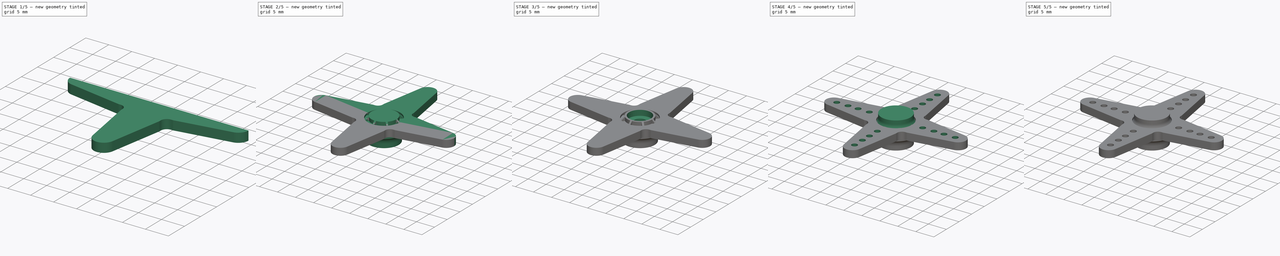
[diagram: build sequence overview — one tinted view per stage of 5, left to right]
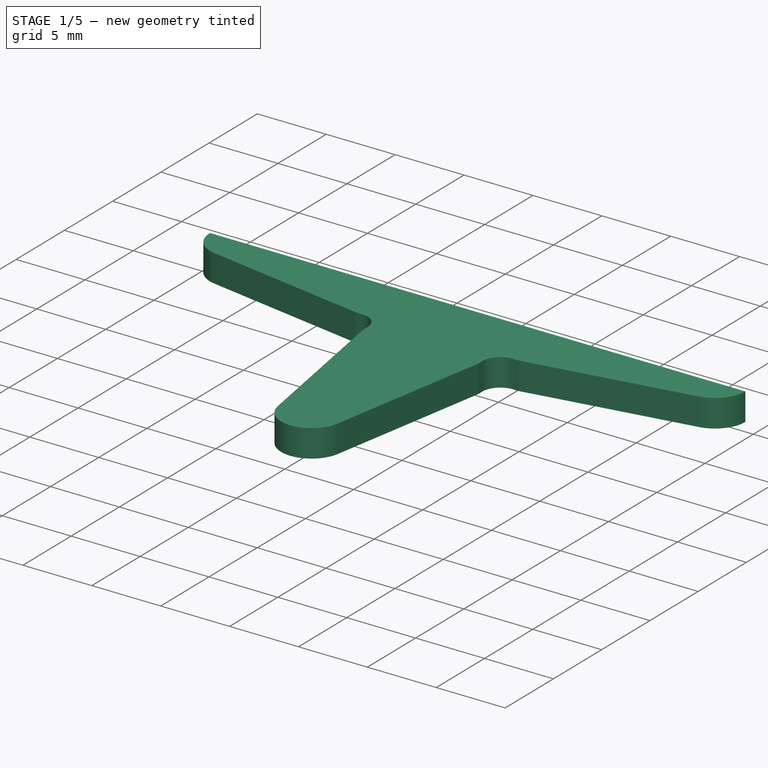
[diagram: stage 1 of 5 — iso view after this stage's code; geometry added in this stage tinted green]
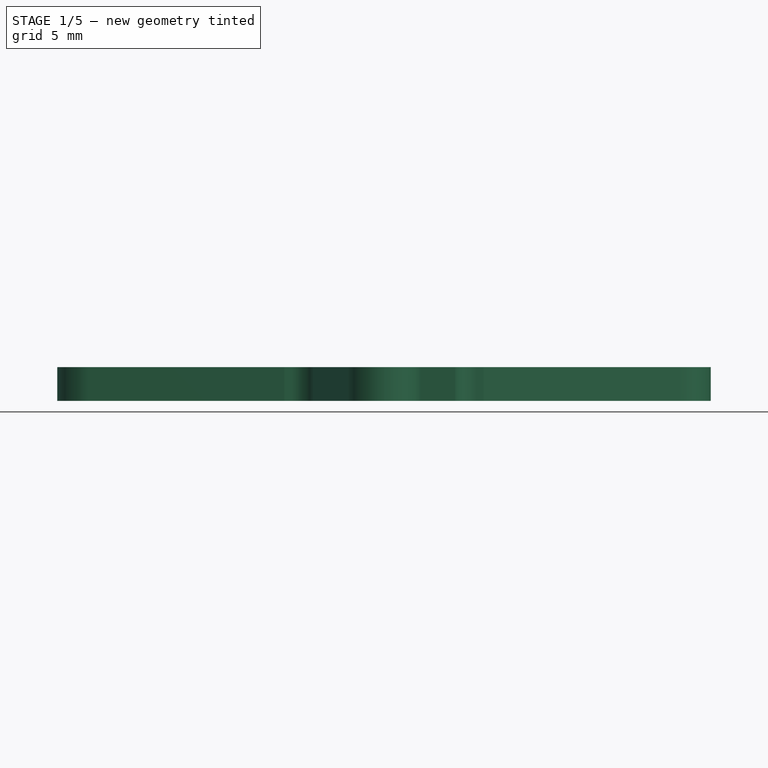
[diagram: stage 1 of 5 — front view after this stage's code; geometry added in this stage tinted green]
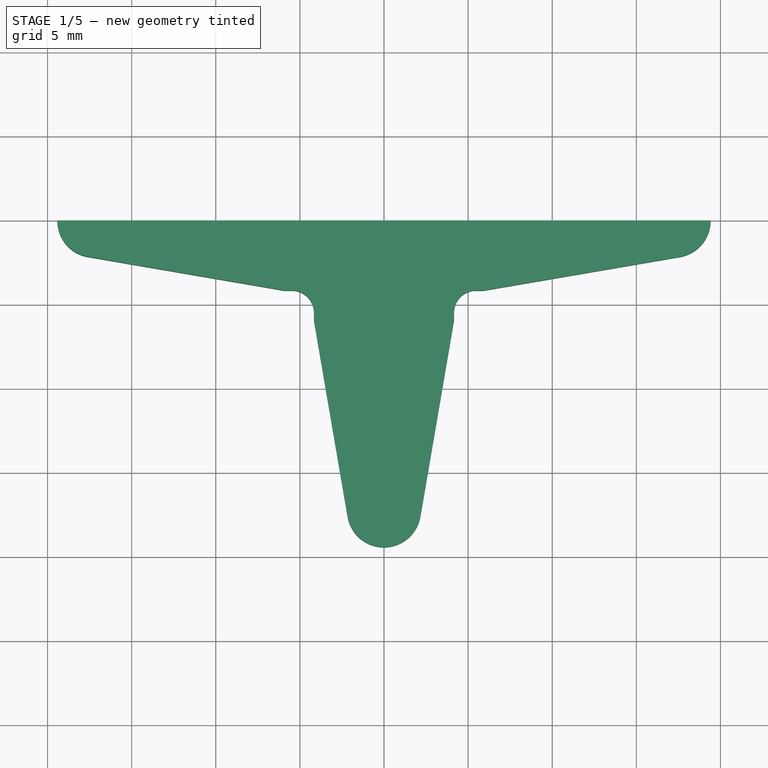
[diagram: stage 1 of 5 — top view after this stage's code; geometry added in this stage tinted green]
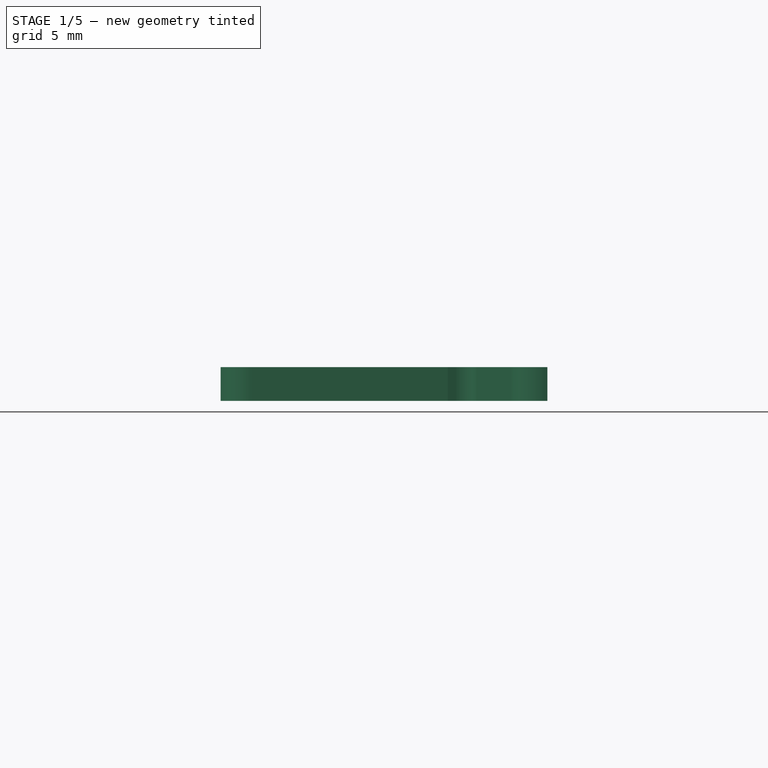
[diagram: stage 1 of 5 — right view after this stage's code; geometry added in this stage tinted green]
FCSTD DOCUMENT  (FreeCAD 0.14R3702 (Git))
Label: Futaba3003-4-arms-horn
Comment: Designed using the caliper
License: CC-BY 3.0
LicenseURL: http://creativecommons.org/licenses/by/3.0/
objects: Sketcher::SketchObject×12, PartDesign::Pocket×7, Part::MultiFuse×3, PartDesign::Revolution×3, PartDesign::Pad×2, Part::Mirroring×2, PartDesign::PolarPattern×2, App::DocumentObjectGroup×2, Part::Feature×2
note: 45 computed .brp shape members not serialized (recipe doc carries the construction recipe); baked Part::Feature solids carry a one-line shape summary decoded from their .brp

FEATURE [Sketcher::SketchObject] Sketch  label="4-arms-horn-quarter-sketch"
  sketch-geometry (12):
    g0: LineSegment StartX=-19.425 StartY=0 StartZ=0 EndX=0 EndY=0 EndZ=0
    g1: LineSegment StartX=0 StartY=0 StartZ=0 EndX=0 EndY=19.425 EndZ=0
    g2: ArcOfCircle CenterX=0 CenterY=17.225 CenterZ=0 NormalX=0 NormalY=0 NormalZ=1 Radius=2.2 StartAngle=1.5708 EndAngle=2.97176
    g3: LineSegment StartX=-2.16835 StartY=17.5968 StartZ=0 EndX=-4.17 EndY=5.925 EndZ=0
    g4: ArcOfCircle CenterX=-17.225 CenterY=0 CenterZ=0 NormalX=0 NormalY=0 NormalZ=1 Radius=2.2 StartAngle=1.74063 EndAngle=3.14159
    g5: LineSegment StartX=-17.5968 StartY=2.16835 StartZ=0 EndX=-5.925 EndY=4.17 EndZ=0
    g6: LineSegment [constr] StartX=-4.17 StartY=5.925 StartZ=0 EndX=0 EndY=5.925 EndZ=0
    g7: LineSegment [constr] StartX=-5.925 StartY=4.17 StartZ=0 EndX=-5.925 EndY=0 EndZ=0
    g8: LineSegment [constr] StartX=0 StartY=0 StartZ=0 EndX=-5.47 EndY=5.47 EndZ=0
    g9: LineSegment StartX=-4.17 StartY=5.925 StartZ=0 EndX=-4.17 EndY=5.47 EndZ=0
    g10: LineSegment StartX=-5.47 StartY=4.17 StartZ=0 EndX=-5.925 EndY=4.17 EndZ=0
    g11: ArcOfCircle CenterX=-5.47 CenterY=5.47 CenterZ=0 NormalX=0 NormalY=0 NormalZ=1 Radius=1.3 StartAngle=4.71239 EndAngle=6.28319
  constraints (37):
    c: Coincident(g0,g1)
    c: Vertical(g1)
    c: Horizontal(g0)
    c: Equal(g0,g1)
    c: Coincident(g0,g-1)
    c: Coincident(g1,g2)
    c: PointOnObject(g2,g1)
    c: Coincident(g3,g2)
    c: Tangent(g3,g2)
    c: Radius(g2) = 2.2
    c: PointOnObject(g4,g0)
    c: Coincident(g4,g0)
    c: Equal(g4,g2)
    c: Coincident(g5,g4)
    c: Tangent(g4,g5)
    c: Horizontal(g6)
    c: PointOnObject(g6,g1)
    c: Coincident(g6,g3)
    c: Vertical(g7)
    c: PointOnObject(g7,g0)
    c: Coincident(g5,g7)
    c: Equal(g7,g6)
    c: Coincident(g8,g-1)
    c: Angle(g-1,g8) = 2.35619
    c: Symmetric(g5,g3,g8)
    c: Vertical(g9)
    c: Horizontal(g10)
    c: Tangent(g9,g11)
    c: Tangent(g10,g11)
    c: Coincident(g9,g3)
    c: Coincident(g10,g5)
    c: Radius(g11) = 1.3
    c: DistanceY(g1) = 19.425
    c: DistanceX(g6) = 4.17
    c: DistanceY(g1,g6) = -13.5
    c: Symmetric(g10,g9,g8)
    c: Coincident(g8,g11)
FEATURE [PartDesign::Pad] Pad  label="4-arms-horn-quarter"
  Length = 2
  Length2 = 100
  Sketch = -> Sketch
  Type = 0
FEATURE [Part::Mirroring] Part__Mirroring  label="4-arms-horn-quarter (Mirror #1)"
  Base = (0,0,0)
  Normal = (1,0,0)
  Source = -> Pad
FEATURE [Part::MultiFuse] Fusion  label="4-arms-horn-half"
  Shapes = -> [Pad,Part__Mirroring]
FEATURE [Part::Mirroring] Part__Mirroring001  label="4-arms-horn-half (Mirror #2)"
  Base = (0,0,0)
  Normal = (0,1,0)
  Source = -> Fusion
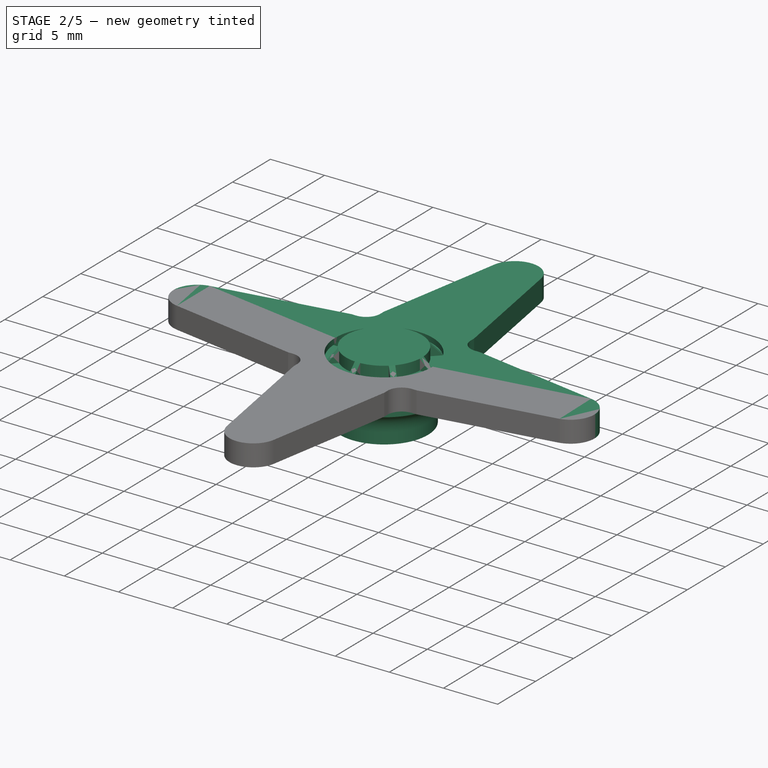
[diagram: stage 2 of 5 — iso view after this stage's code; geometry added in this stage tinted green]
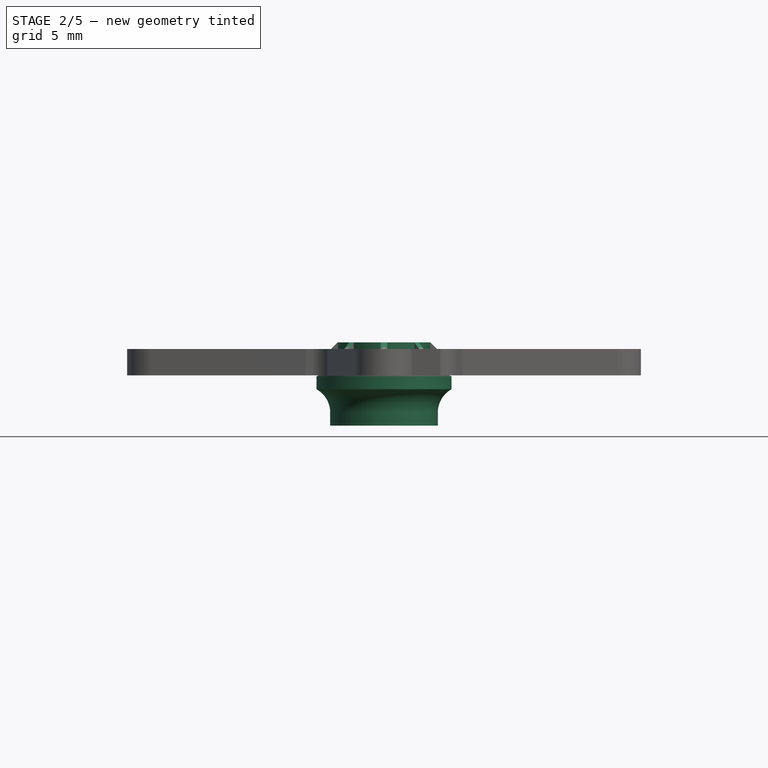
[diagram: stage 2 of 5 — front view after this stage's code; geometry added in this stage tinted green]
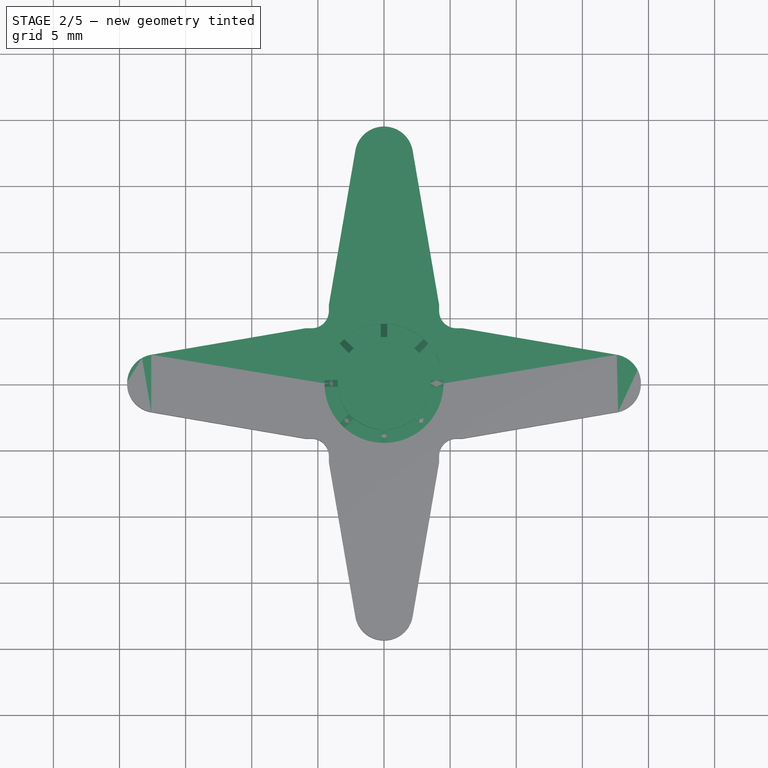
[diagram: stage 2 of 5 — top view after this stage's code; geometry added in this stage tinted green]
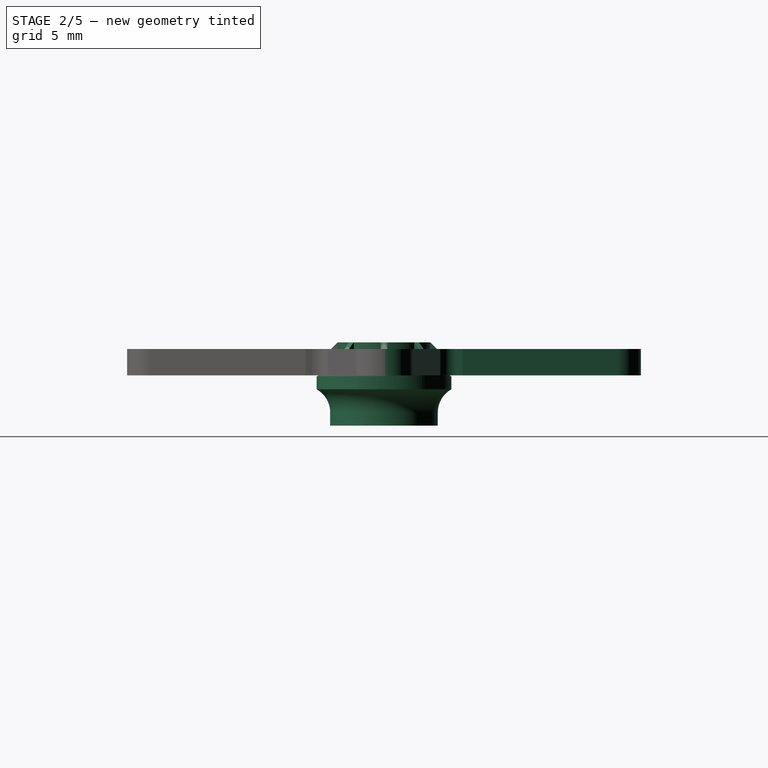
[diagram: stage 2 of 5 — right view after this stage's code; geometry added in this stage tinted green]
FEATURE [Part::MultiFuse] Fusion001  label="4-arms-horn-body"
  Shapes = -> [Part__Mirroring001,Fusion]
FEATURE [Sketcher::SketchObject] Sketch001  label="top-circle-sketch"
  Placement = pos=(0,0,2) rot=(0,0,1;0rad)
  Support = -> Fusion001 [Face24]
  sketch-geometry (1):
    g0: Circle CenterX=0 CenterY=0 CenterZ=0 NormalX=0 NormalY=0 NormalZ=1 Radius=4.5
  constraints (2):
    c: Coincident(g0,g-1)
    c: Radius(g0) = 4.5
FEATURE [PartDesign::Pocket] Pocket  label="top-circle"
  Length = 0.5
  Sketch = -> Sketch001
  Type = 0
FEATURE [Sketcher::SketchObject] Sketch002  label="bottom-circle-sketch"
  Placement = pos=(0,0,0) rot=(1,0,0;3.14159rad)
  Support = -> Pocket [Face4]
  sketch-geometry (1):
    g0: Circle CenterX=0 CenterY=0 CenterZ=0 NormalX=0 NormalY=0 NormalZ=1 Radius=5
  constraints (2):
    c: Coincident(g0,g-1)
    c: Radius(g0) = 5
FEATURE [PartDesign::Pad] Pad001  label="bottom-circle"
  Length = 0.05
  Length2 = 100
  Sketch = -> Sketch002
  Type = 0
FEATURE [App::DocumentObjectGroup] Group001  label="bottom-part"
  Group = -> [Revolution002]
FEATURE [Part::Feature] Revolution002001  label="bottom-part4"
  Placement = pos=(0,0,-0.05) rot=(-1,0,0;1.5708rad)
  shape: bbox 13.14 x 13.14 x 3.75 mm, 5 faces (baked)
FEATURE [Part::MultiFuse] Fusion002  label="4-arms-horn-body2"
  Shapes = -> [Revolution002001,PolarPattern001,Pad001]
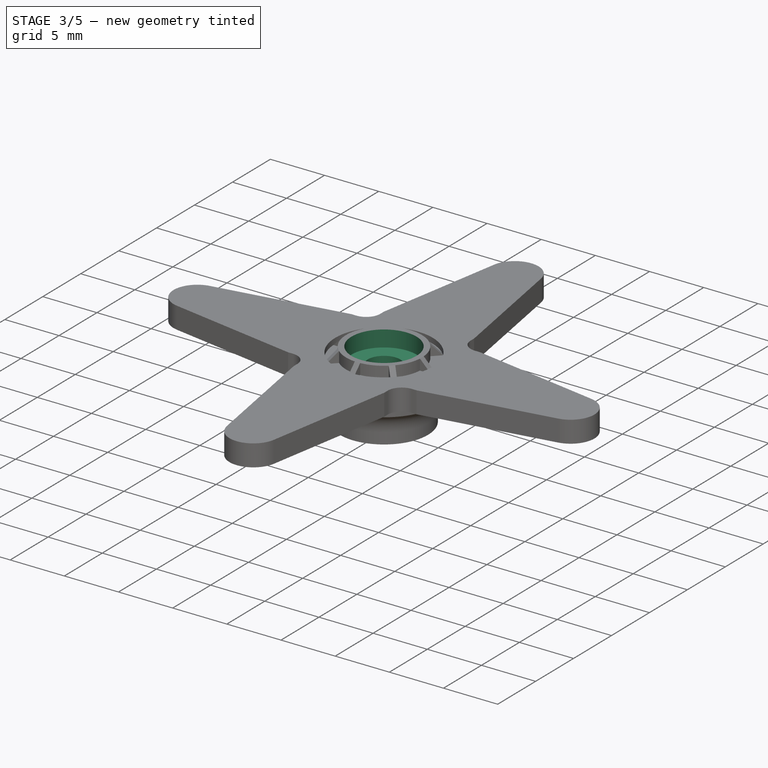
[diagram: stage 3 of 5 — iso view after this stage's code; geometry added in this stage tinted green]
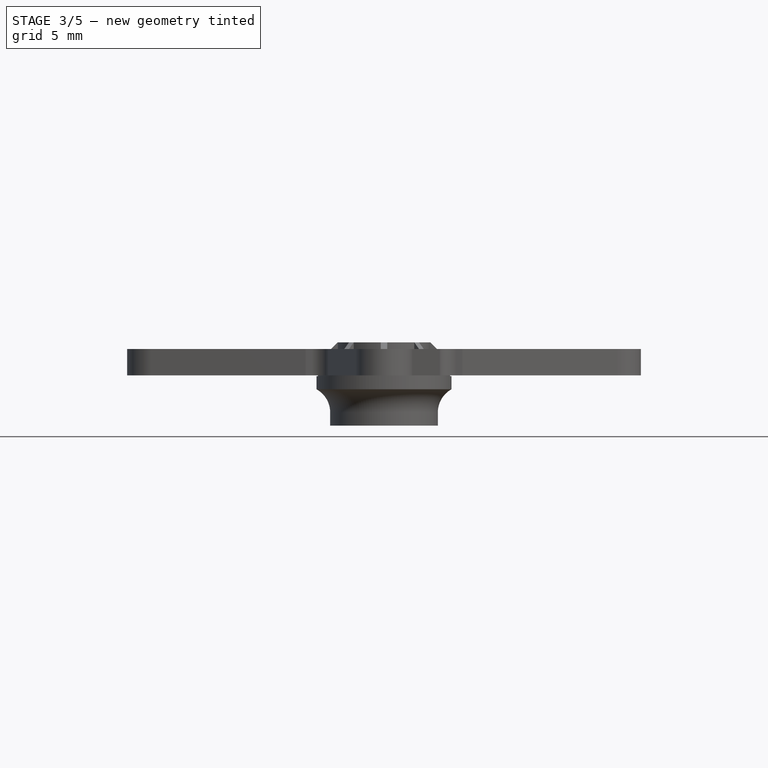
[diagram: stage 3 of 5 — front view after this stage's code; geometry added in this stage tinted green]
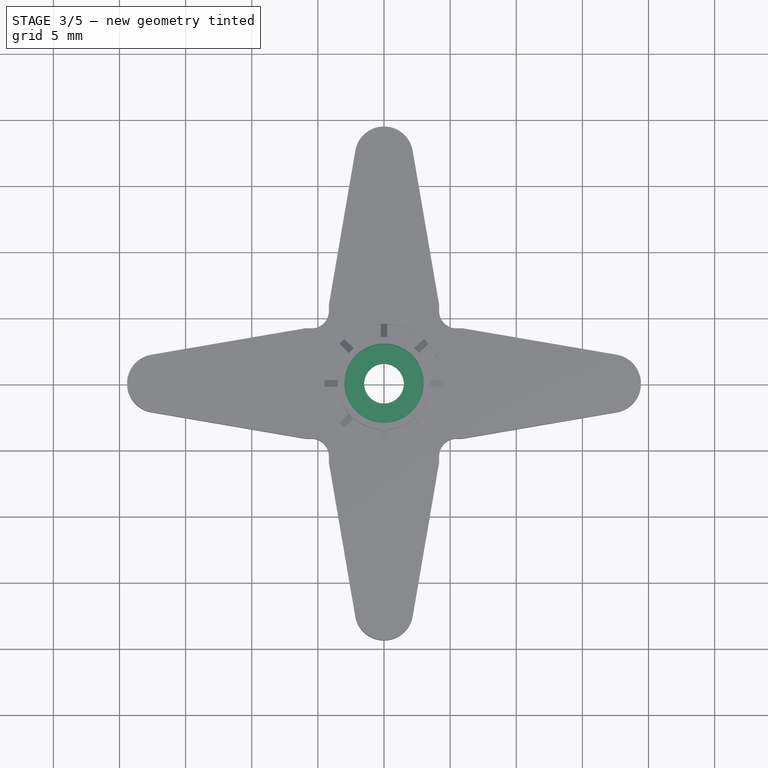
[diagram: stage 3 of 5 — top view after this stage's code; geometry added in this stage tinted green]
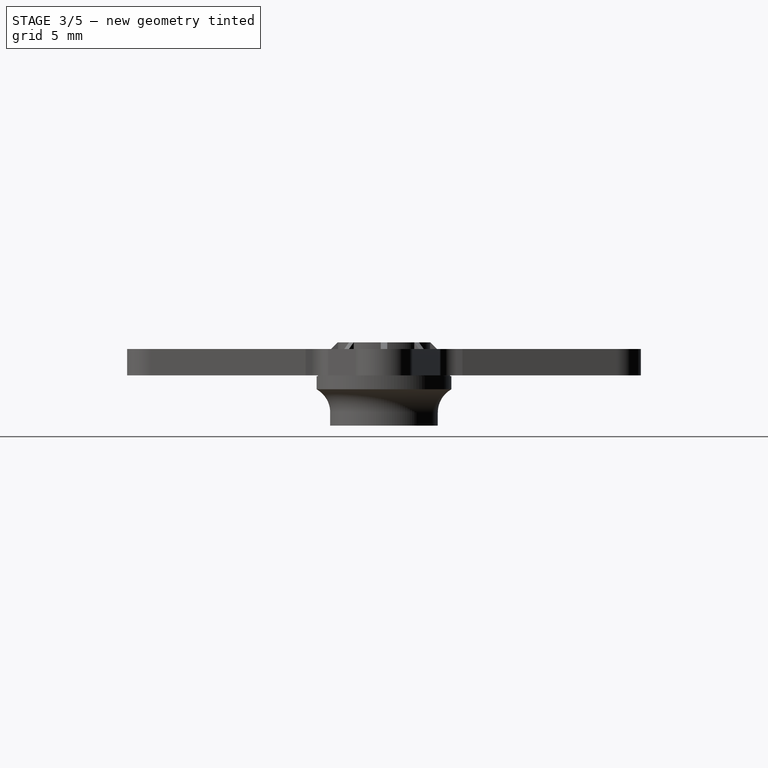
[diagram: stage 3 of 5 — right view after this stage's code; geometry added in this stage tinted green]
FEATURE [Sketcher::SketchObject] Sketch007  label="top-circle-2-sketch"
  Placement = pos=(0,0,2.5) rot=(0,0,1;0rad)
  Support = -> Fusion002 [Face48]
  sketch-geometry (1):
    g0: Circle CenterX=0 CenterY=0 CenterZ=0 NormalX=0 NormalY=0 NormalZ=1 Radius=3
  constraints (2):
    c: Coincident(g0,g-1)
    c: Radius(g0) = 3
FEATURE [PartDesign::Pocket] Pocket003  label="top-circle-2"
  Length = 1.5
  Sketch = -> Sketch007
  Type = 0
FEATURE [Sketcher::SketchObject] Sketch009
  Placement = pos=(0,0,-3.8) rot=(1,0,0;3.14159rad)
  Support = -> Pocket003 [Face77]
  sketch-geometry (1):
    g0: Circle CenterX=0 CenterY=0 CenterZ=0 NormalX=0 NormalY=0 NormalZ=1 Radius=2.9
  constraints (2):
    c: Coincident(g0,g-1)
    c: Radius(g0) = 2.9
FEATURE [PartDesign::Pocket] Pocket004
  Length = 3.7
  Sketch = -> Sketch009
  Type = 0
FEATURE [Sketcher::SketchObject] Sketch010
  Placement = pos=(0,0,1) rot=(0,0,1;0rad)
  Support = -> Pocket004 [Face76]
  sketch-geometry (1):
    g0: Circle CenterX=0 CenterY=0 CenterZ=0 NormalX=0 NormalY=0 NormalZ=1 Radius=1.5
  constraints (2):
    c: Coincident(g0,g-1)
    c: Radius(g0) = 1.5
FEATURE [PartDesign::Pocket] Pocket005
  Length = 5
  Sketch = -> Sketch010
  Type = 1
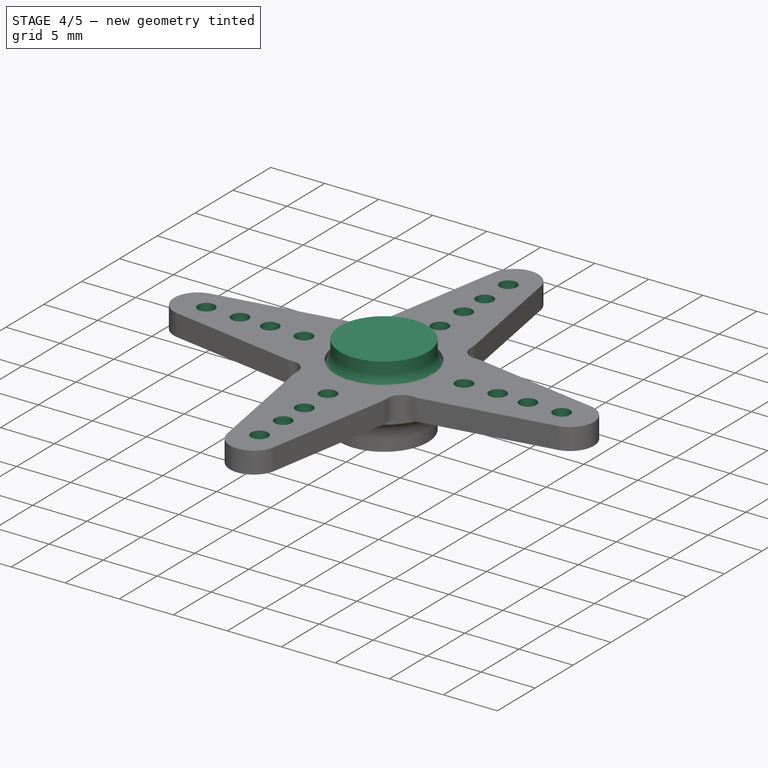
[diagram: stage 4 of 5 — iso view after this stage's code; geometry added in this stage tinted green]
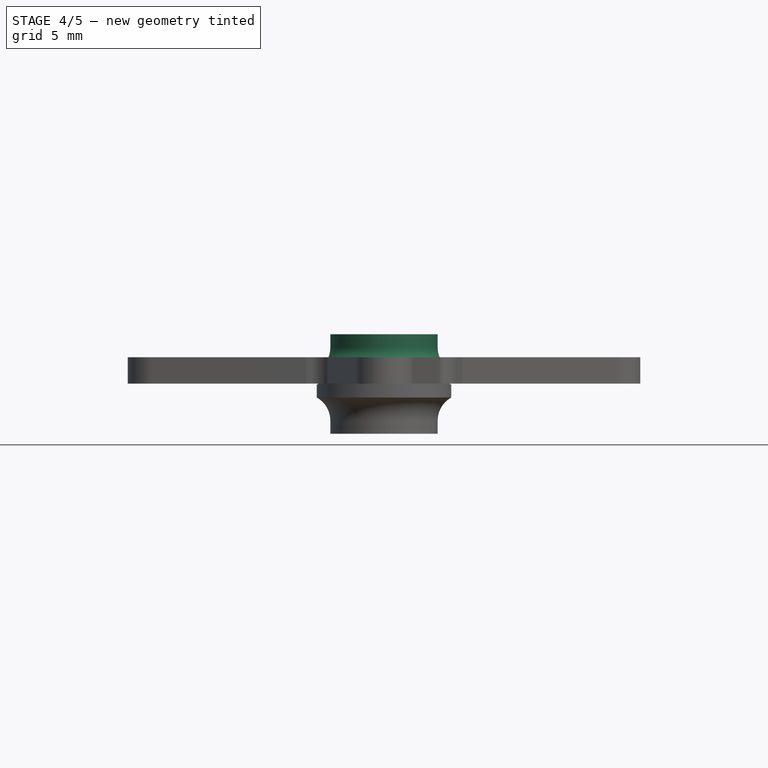
[diagram: stage 4 of 5 — front view after this stage's code; geometry added in this stage tinted green]
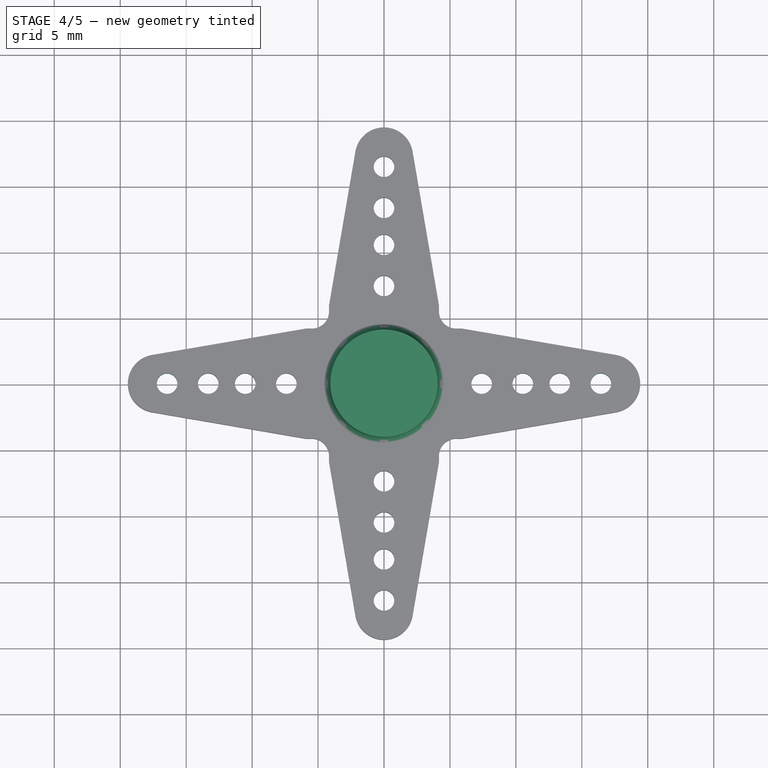
[diagram: stage 4 of 5 — top view after this stage's code; geometry added in this stage tinted green]
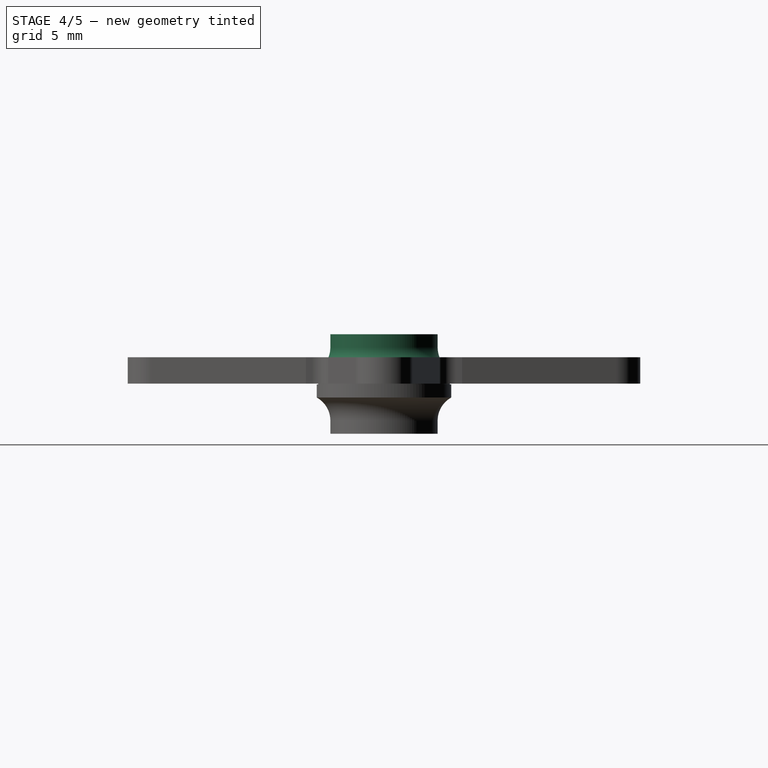
[diagram: stage 4 of 5 — right view after this stage's code; geometry added in this stage tinted green]
FEATURE [Sketcher::SketchObject] Sketch005
  Placement = pos=(0,0,0) rot=(1,0,0;1.5708rad)
  sketch-geometry (4):
    g0: LineSegment StartX=0 StartY=0 StartZ=0 EndX=4.5 EndY=0 EndZ=0
    g1: LineSegment StartX=4.5 StartY=0 StartZ=0 EndX=3.5 EndY=1 EndZ=0
    g2: LineSegment StartX=3.5 StartY=1 StartZ=0 EndX=0 EndY=1 EndZ=0
    g3: LineSegment StartX=0 StartY=1 StartZ=0 EndX=0 EndY=0 EndZ=0
  constraints (11):
    c: Coincident(g-1,g0)
    c: Horizontal(g0)
    c: Coincident(g0,g1)
    c: Coincident(g1,g2)
    c: Horizontal(g2)
    c: Coincident(g2,g3)
    c: Coincident(g3,g0)
    c: Vertical(g3)
    c: DistanceX(g0) = 4.5
    c: DistanceX(g2) = -3.5
    c: DistanceY(g3) = -1
FEATURE [PartDesign::Revolution] Revolution001  label="top-part-1"
  Angle = 360
  Axis = (0,0,1)
  Base = (0,0,0)
  Placement = pos=(0,0,0) rot=(1,0,0;1.5708rad)
  ReferenceAxis = -> Sketch005 [V_Axis]
  Reversed = true
  Sketch = -> Sketch005
FEATURE [App::DocumentObjectGroup] Group  label="top-part"
  Group = -> [Revolution001,Pocket002,PolarPattern]
FEATURE [Part::Feature] PolarPattern001  label="top-part4"
  Placement = pos=(0,0,1.5) rot=(1,0,0;1.5708rad)
  shape: bbox 9 x 9 x 1 mm, 35 faces (baked)
FEATURE [Sketcher::SketchObject] Sketch008
  Placement = pos=(0,0,0) rot=(1,0,0;1.5708rad)
  sketch-geometry (6):
    g0: LineSegment StartX=4.07 StartY=2.75 StartZ=0 EndX=4.07 EndY=3.75 EndZ=0
    g1: LineSegment StartX=4.07 StartY=3.75 StartZ=0 EndX=0 EndY=3.75 EndZ=0
    g2: LineSegment StartX=0 StartY=3.75 StartZ=0 EndX=0 EndY=0 EndZ=0
    g3: LineSegment StartX=0 StartY=0 StartZ=0 EndX=5.1 EndY=0 EndZ=0
    g4: LineSegment StartX=5.1 StartY=0 StartZ=0 EndX=5.1 EndY=1 EndZ=0
    g5: ArcOfCircle CenterX=6.07166 CenterY=2.75001 CenterZ=0 NormalX=0 NormalY=0 NormalZ=1 Radius=2.00166 StartAngle=3.1416 EndAngle=4.20554
  constraints (18):
    c: Vertical(g0)
    c: Coincident(g0,g1)
    c: Horizontal(g1)
    c: Coincident(g1,g2)
    c: Vertical(g2)
    c: Coincident(g2,g3)
    c: Horizontal(g3)
    c: Coincident(g3,g4)
    c: Vertical(g4)
    c: Coincident(g2,g-1)
    c: DistanceX(g3) = 5.1
    c: DistanceX(g1) = -4.07
    c: DistanceY(g2) = -3.75
    c: DistanceY(g4) = 1
    c: DistanceY(g0) = 1
    c: Coincident(g5,g4)
    c: Coincident(g5,g0)
    c: Tangent(g0,g5)
FEATURE [PartDesign::Revolution] Revolution002  label="bottom-part3"
  Angle = 360
  Axis = (0,0,1)
  Base = (0,0,0)
  Placement = pos=(0,0,0) rot=(1,0,0;1.5708rad)
  ReferenceAxis = -> Sketch008 [V_Axis]
  Reversed = true
  Sketch = -> Sketch008
FEATURE [Sketcher::SketchObject] Sketch011  label="horn-drill-master-sketch"
  ExternalGeometry = -> [Pocket005]
  Placement = pos=(0,0,2) rot=(0,0,1;0rad)
  Support = -> Pocket005 [Face5]
  sketch-geometry (10):
    g0: Circle CenterX=0 CenterY=16.445 CenterZ=0 NormalX=0 NormalY=0 NormalZ=1 Radius=0.78
    g1: LineSegment [constr] StartX=0 StartY=19.425 StartZ=0 EndX=0 EndY=17.225 EndZ=0
    g2: Circle CenterX=0 CenterY=7.405 CenterZ=0 NormalX=0 NormalY=0 NormalZ=1 Radius=0.78
    g3: Circle CenterX=0 CenterY=13.325 CenterZ=0 NormalX=0 NormalY=0 NormalZ=1 Radius=0.78
    g4: Circle CenterX=0 CenterY=10.525 CenterZ=0 NormalX=0 NormalY=0 NormalZ=1 Radius=0.78
    g5: GeomPoint [constr] X=0 Y=17.225 Z=0
    g6: GeomPoint [constr] X=0 Y=17.225 Z=0
    g7: GeomPoint [constr] X=0 Y=6.625 Z=0
    g8: LineSegment [constr] StartX=0 StartY=15.665 StartZ=0 EndX=0 EndY=14.105 EndZ=0
    g9: LineSegment [constr] StartX=0 StartY=9.745 StartZ=0 EndX=0 EndY=8.185 EndZ=0
  constraints (30):
    c: PointOnObject(g0,g-2)
    c: Vertical(g1)
    c: Radius(g0) = 0.78
    c: PointOnObject(g1,g-2)
    c: PointOnObject(g1,g0)
    c: Coincident(g1,g-3)
    c: DistanceY(g1) = -2.2
    c: PointOnObject(g2,g-2)
    c: Equal(g0,g2)
    c: PointOnObject(g3,g-2)
    c: PointOnObject(g4,g-2)
    c: Equal(g3,g4)
    c: Equal(g4,g0)
    c: PointOnObject(g5,g0)
    c: PointOnObject(g5,g-2)
    c: PointOnObject(g6,g0)
    c: PointOnObject(g6,g-2)
    c: PointOnObject(g7,g2)
    c: PointOnObject(g7,g-2)
    c: DistanceY(g1,g7) = -10.6
    c: Vertical(g8)
    c: Vertical(g9)
    c: Equal(g9,g8)
    c: PointOnObject(g8,g-2)
    c: PointOnObject(g8,g0)
    c: PointOnObject(g8,g3)
    c: DistanceY(g8) = -1.56
    c: PointOnObject(g9,g-2)
    c: PointOnObject(g9,g2)
    c: PointOnObject(g9,g4)
FEATURE [PartDesign::Pocket] Pocket006  label="horn-drills-master"
  Length = 5
  Sketch = -> Sketch011
  Type = 1
FEATURE [PartDesign::PolarPattern] PolarPattern002  label="4-arms-horn-final"
  Angle = 360
  Axis = -> Sketch011 [N_Axis]
  Occurrences = 4
  Originals = -> [Pocket006]
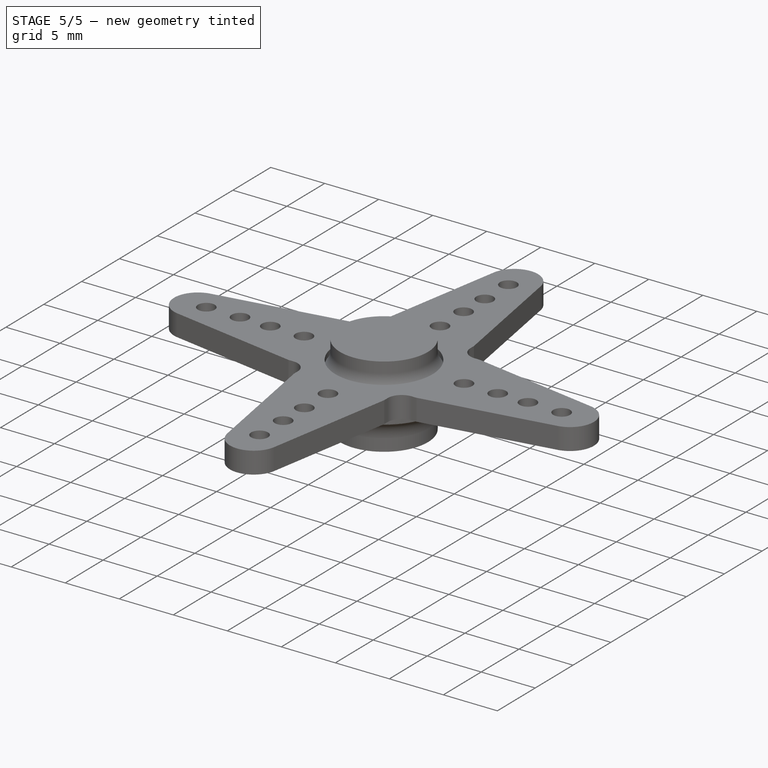
[diagram: stage 5 of 5 — iso view after this stage's code; geometry added in this stage tinted green]
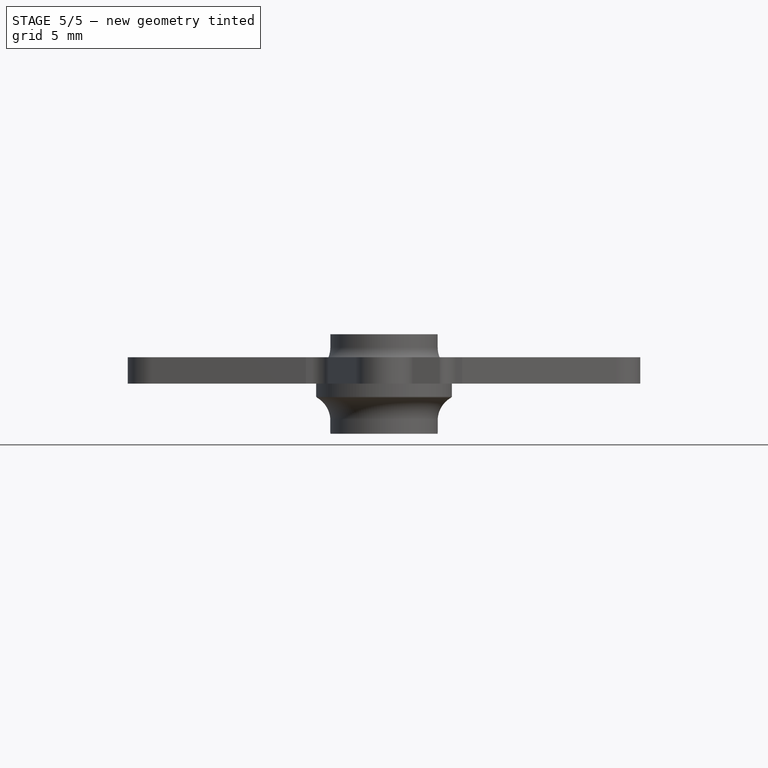
[diagram: stage 5 of 5 — front view after this stage's code; geometry added in this stage tinted green]
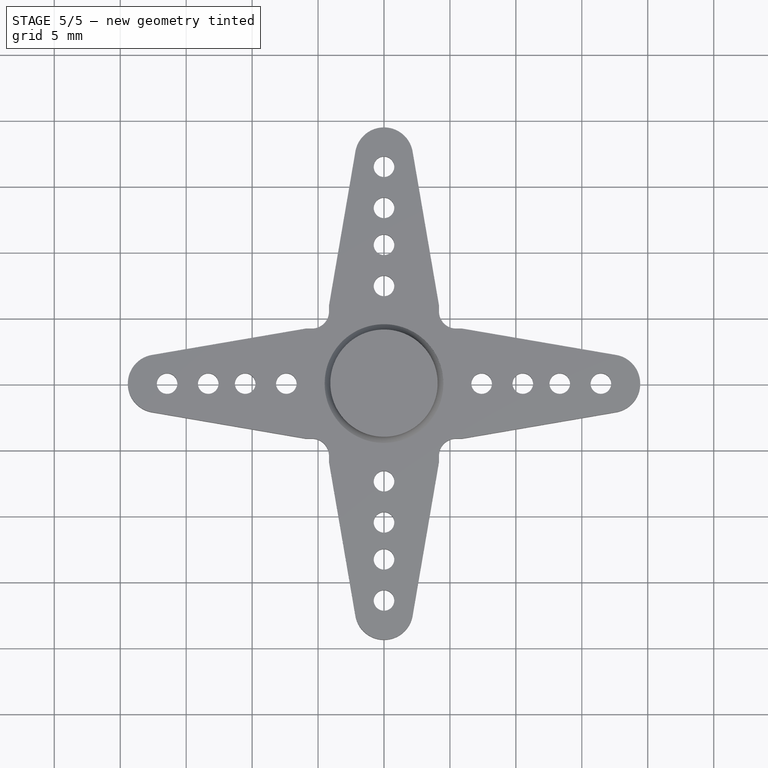
[diagram: stage 5 of 5 — top view after this stage's code; geometry added in this stage tinted green]
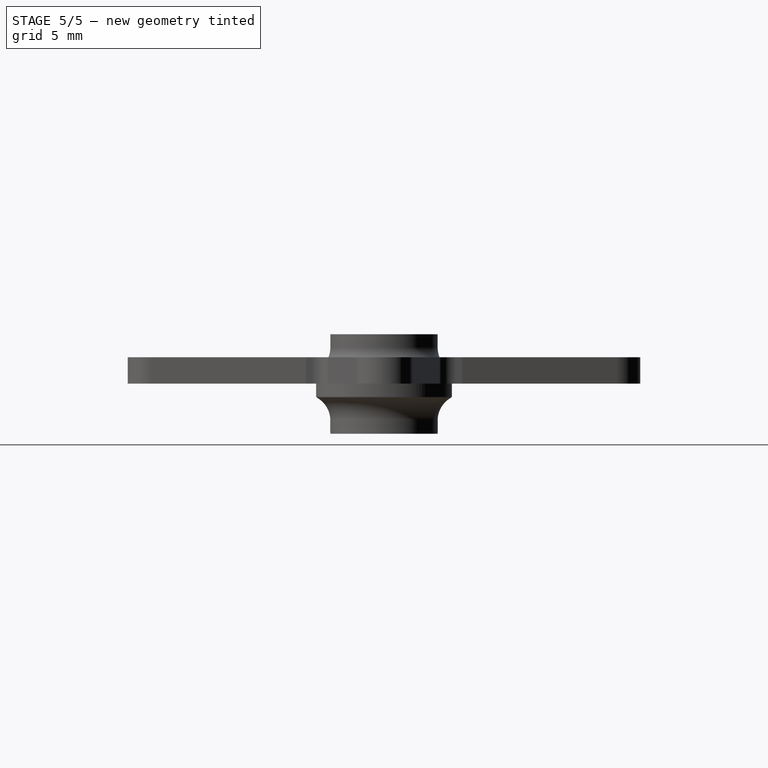
[diagram: stage 5 of 5 — right view after this stage's code; geometry added in this stage tinted green]
FEATURE [Sketcher::SketchObject] Sketch003  label="bottom-part-1-sketch"
  Placement = pos=(0,0,0) rot=(-1,0,0;1.5708rad)
  sketch-geometry (6):
    g0: LineSegment StartX=0 StartY=0 StartZ=0 EndX=5.15 EndY=0 EndZ=0
    g1: LineSegment StartX=5.15 StartY=0 StartZ=0 EndX=5.15 EndY=1 EndZ=0
    g2: LineSegment StartX=0 StartY=0 StartZ=0 EndX=0 EndY=3.7 EndZ=0
    g3: LineSegment StartX=0 StartY=3.7 StartZ=0 EndX=4.075 EndY=3.7 EndZ=0
    g4: LineSegment StartX=4.075 StartY=3.7 StartZ=0 EndX=4.075 EndY=2.7 EndZ=0
    g5: ArcOfCircle CenterX=5.9567 CenterY=2.70001 CenterZ=0 NormalX=0 NormalY=0 NormalZ=1 Radius=1.8817 StartAngle=3.1416 EndAngle=4.26933
  constraints (18):
    c: Coincident(g-1,g0)
    c: Horizontal(g0)
    c: Coincident(g0,g1)
    c: Coincident(g-1,g2)
    c: Vertical(g2)
    c: Coincident(g2,g3)
    c: Horizontal(g3)
    c: Coincident(g3,g4)
    c: Vertical(g4)
    c: DistanceX(g0) = 5.15
    c: Vertical(g1)
    c: DistanceY(g1) = 1
    c: DistanceY(g4) = -1
    c: DistanceX(g3) = 4.075
    c: Coincident(g5,g1)
    c: Coincident(g5,g4)
    c: DistanceY(g2) = 3.7
    c: Tangent(g4,g5)
FEATURE [PartDesign::Revolution] Revolution  label="bottom-part-1"
  Angle = 360
  Axis = (0,0,-1)
  Base = (0,0,0)
  Placement = pos=(0,0,0) rot=(-1,0,0;1.5708rad)
  ReferenceAxis = -> Sketch003 [V_Axis]
  Reversed = true
  Sketch = -> Sketch003
FEATURE [Sketcher::SketchObject] Sketch004  label="bottom-part-2-sketch"
  Placement = pos=(0,0,-3.7) rot=(0,1,0;3.14159rad)
  Support = -> Revolution [Face5]
  sketch-geometry (1):
    g0: Circle CenterX=0 CenterY=0 CenterZ=0 NormalX=0 NormalY=0 NormalZ=1 Radius=2.675
  constraints (2):
    c: Coincident(g0,g-1)
    c: Radius(g0) = 2.675
FEATURE [PartDesign::Pocket] Pocket001  label="bottom-part-2"
  Length = 5
  Placement = pos=(0,0,0) rot=(-1,0,0;1.5708rad)
  Sketch = -> Sketch004
  Type = 1
FEATURE [Sketcher::SketchObject] Sketch006  label="top-pocket-master-sketch"
  ExternalGeometry = -> [Revolution001]
  Placement = pos=(0,0,1) rot=(0,0,1;3.14159rad)
  Support = -> Revolution001 [Face3]
  sketch-geometry (5):
    g0: LineSegment StartX=0.25 StartY=3.49106 StartZ=0 EndX=0.25 EndY=4.69106 EndZ=0
    g1: LineSegment [constr] StartX=0 StartY=0 StartZ=0 EndX=2.47487 EndY=2.47487 EndZ=0
    g2: LineSegment StartX=2.29178 StartY=2.64533 StartZ=0 EndX=3.1403 EndY=3.49386 EndZ=0
    g3: ArcOfCircle CenterX=0 CenterY=0 CenterZ=0 NormalX=0 NormalY=0 NormalZ=1 Radius=3.5 StartAngle=0.856888 EndAngle=1.49931
    g4: ArcOfCircle CenterX=0 CenterY=0 CenterZ=0 NormalX=0 NormalY=0 NormalZ=1 Radius=4.69772 StartAngle=0.838641 EndAngle=1.51755
  constraints (15):
    c: Vertical(g0)
    c: DistanceX(g-1,g0) = 0.25
    c: Coincident(g1,g-1)
    c: Angle(g-1,g1) = 0.785398
    c: Parallel(g2,g1)
    c: Coincident(g3,g-1)
    c: Equal(g0,g2)
    c: Coincident(g4,g-1)
    c: Coincident(g3,g0)
    c: Coincident(g3,g2)
    c: Coincident(g4,g0)
    c: Coincident(g4,g2)
    c: DistanceY(g0) = 1.2
    c: PointOnObject(g0,g-3)
    c: Equal(g0,g2)
FEATURE [PartDesign::Pocket] Pocket002  label="top-part2"
  Length = 5
  Placement = pos=(0,0,0) rot=(1,0,0;1.5708rad)
  Sketch = -> Sketch006
  Type = 1
FEATURE [PartDesign::PolarPattern] PolarPattern  label="top-part3"
  Angle = 360
  Axis = -> Sketch006 [N_Axis]
  Occurrences = 8
  Originals = -> [Pocket002]
  Placement = pos=(0,0,0) rot=(1,0,0;1.5708rad)
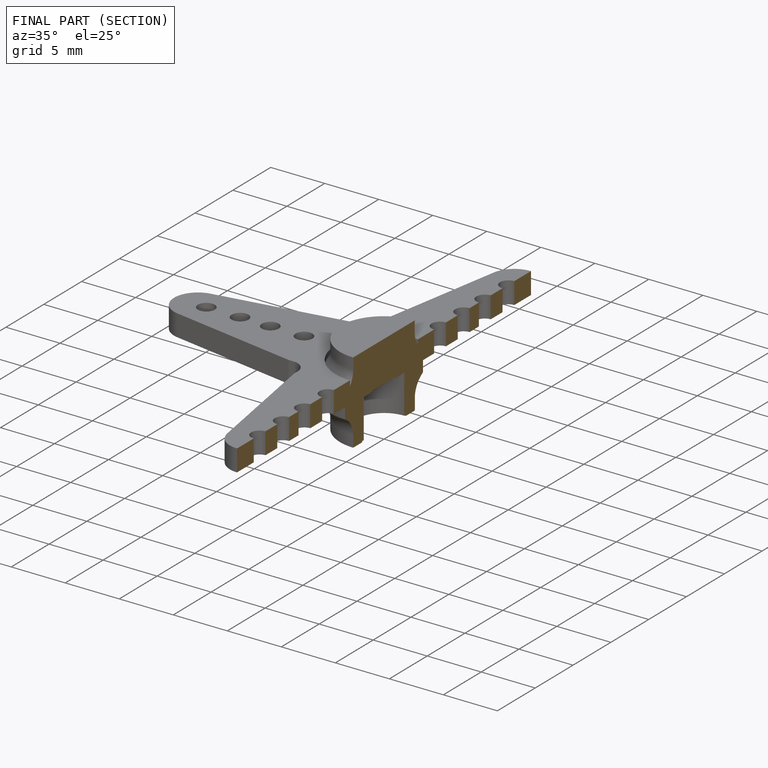
[diagram: finished part — half-section view (interior)]
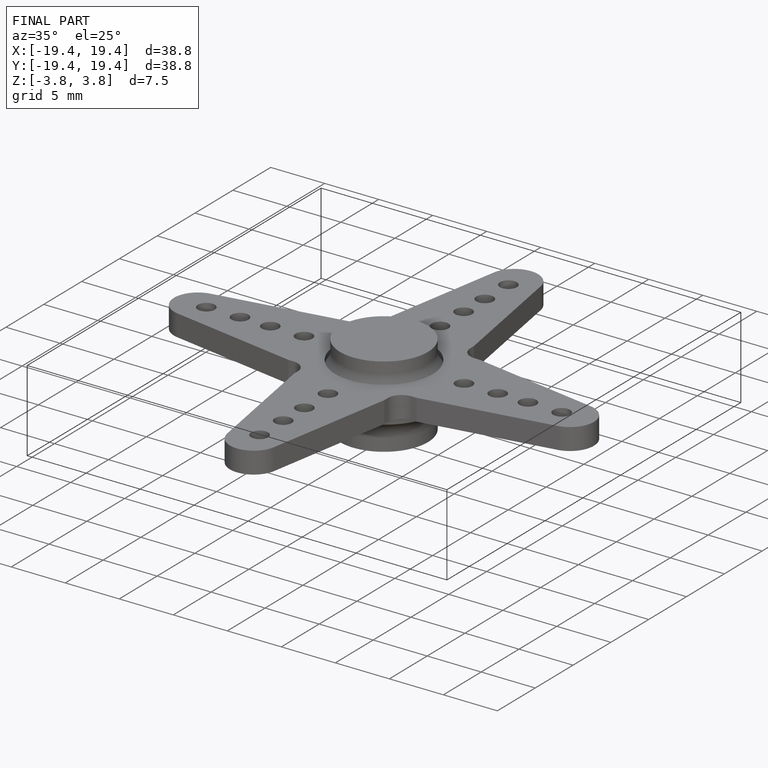
[diagram: finished part — iso view with bounding-box wireframe]
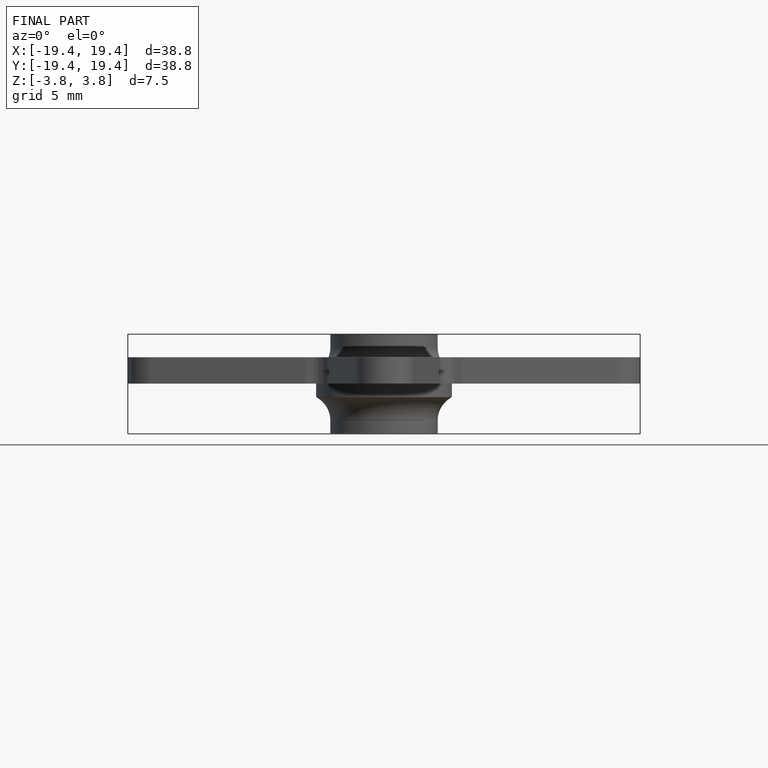
[diagram: finished part — front view with bounding-box wireframe]
